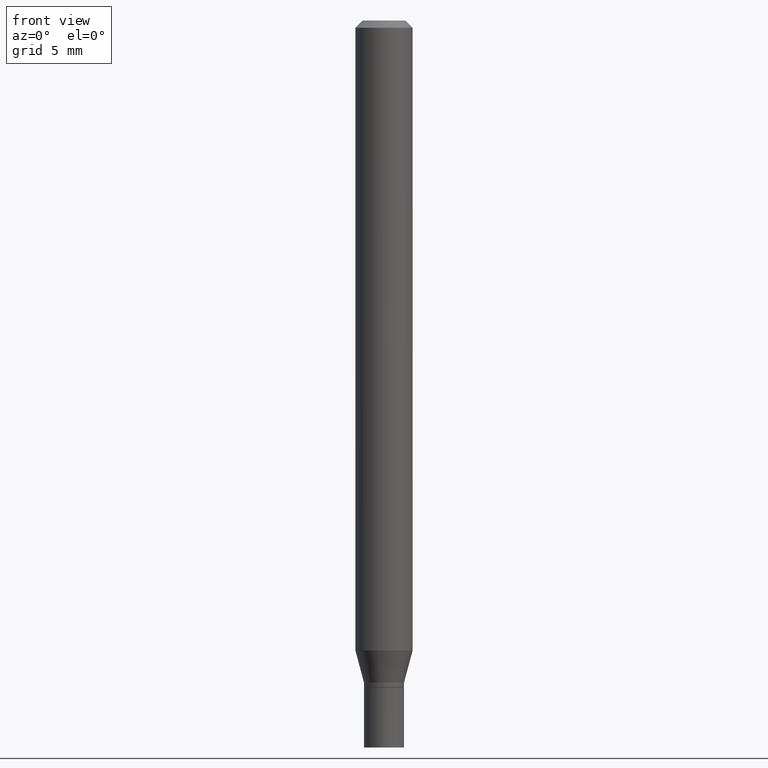
[diagram: clean part render]
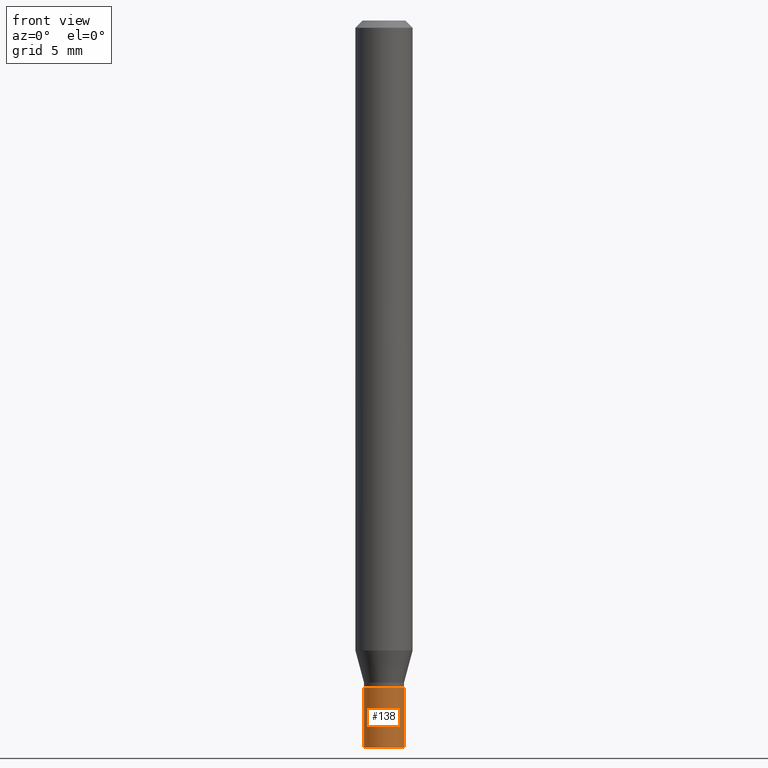
[diagram: same view with one face highlighted and labeled with its STEP entity id]
A machine part, front view. The second image highlights one B-rep face of the part: STEP entity #138.
In plain terms, the highlighted cylindrical surface (edge-blend (fillet) strip) has radius 1.0503 mm, axis along (-0, 0, 1).
Its self-contained STEP definition (entity closure, byte-faithful):
#15 = LINE ( 'NONE', #181, #462 ) ;
#33 = FACE_OUTER_BOUND ( 'NONE', #457, .T. ) ;
#34 = EDGE_CURVE ( 'NONE', #218, #341, #241, .T. ) ;
#35 = ORIENTED_EDGE ( 'NONE', *, *, #34, .T. ) ;
#42 = VECTOR ( 'NONE', #374, 39.37007874015748143 ) ;
#45 = VERTEX_POINT ( 'NONE', #338 ) ;
#52 = DIRECTION ( 'NONE',  ( -2.445468806185136877E-29, 3.491481338843145188E-15, 1.000000000000000000 ) ) ;
#101 = ORIENTED_EDGE ( 'NONE', *, *, #399, .F. ) ;
#118 = AXIS2_PLACEMENT_3D ( 'NONE', #203, #350, #355 ) ;
#124 = CIRCLE ( 'NONE', #451, 0.04134999999999999787 ) ;
#126 = ORIENTED_EDGE ( 'NONE', *, *, #345, .T. ) ;
#138 = ADVANCED_FACE ( 'NONE', ( #33 ), #210, .T. ) ;
#150 = CARTESIAN_POINT ( 'NONE',  ( 0.04134999999999999787, -5.092674680836612159E-15, -1.375900000000000123 ) ) ;
#166 = CARTESIAN_POINT ( 'NONE',  ( 3.668203209277704895E-29, -5.237222008264718177E-15, -1.500000000000000222 ) ) ;
#181 = CARTESIAN_POINT ( 'NONE',  ( -0.04134999999999999787, 2.938094212368014117E-16, -2.033979659820403452E-30 ) ) ;
#191 = ORIENTED_EDGE ( 'NONE', *, *, #315, .F. ) ;
#203 = CARTESIAN_POINT ( 'NONE',  ( 0.000000000000000000, 0.000000000000000000, 0.000000000000000000 ) ) ;
#210 = CYLINDRICAL_SURFACE ( 'NONE', #118, 0.04134999999999999787 ) ;
#218 = VERTEX_POINT ( 'NONE', #388 ) ;
#221 = DIRECTION ( 'NONE',  ( -2.445468806185136597E-29, 3.491481338843145583E-15, 1.000000000000000000 ) ) ;
#241 = CIRCLE ( 'NONE', #300, 0.04134999999999999787 ) ;
#283 = DIRECTION ( 'NONE',  ( 1.000000000000000000, -6.982962677686273021E-15, 0.000000000000000000 ) ) ;
#295 = DIRECTION ( 'NONE',  ( 1.000000000000000000, -6.982962677686273021E-15, 0.000000000000000000 ) ) ;
#300 = AXIS2_PLACEMENT_3D ( 'NONE', #166, #221, #295 ) ;
#315 = EDGE_CURVE ( 'NONE', #45, #356, #124, .T. ) ;
#323 = CARTESIAN_POINT ( 'NONE',  ( 3.364720530430130200E-29, -4.803929174114285214E-15, -1.375900000000000123 ) ) ;
#338 = CARTESIAN_POINT ( 'NONE',  ( -0.04134999999999999787, -4.726766169952701467E-15, -1.375900000000000123 ) ) ;
#341 = VERTEX_POINT ( 'NONE', #466 ) ;
#345 = EDGE_CURVE ( 'NONE', #341, #356, #369, .T. ) ;
#350 = DIRECTION ( 'NONE',  ( -2.445468806185136597E-29, 3.491481338843145583E-15, 1.000000000000000000 ) ) ;
#355 = DIRECTION ( 'NONE',  ( 1.000000000000000000, -6.982962677686267499E-15, 4.876176775795936353E-29 ) ) ;
#356 = VERTEX_POINT ( 'NONE', #150 ) ;
#365 = DIRECTION ( 'NONE',  ( -2.445468806185136597E-29, 3.491481338843145583E-15, 1.000000000000000000 ) ) ;
#369 = LINE ( 'NONE', #413, #42 ) ;
#374 = DIRECTION ( 'NONE',  ( -2.445468806185136877E-29, 3.491481338843145188E-15, 1.000000000000000000 ) ) ;
#388 = CARTESIAN_POINT ( 'NONE',  ( -0.04134999999999999787, -4.726766169952701467E-15, -1.500000000000000222 ) ) ;
#399 = EDGE_CURVE ( 'NONE', #218, #45, #15, .T. ) ;
#413 = CARTESIAN_POINT ( 'NONE',  ( 0.04134999999999999787, -2.887455067223271427E-16, 2.016299096791619635E-30 ) ) ;
#451 = AXIS2_PLACEMENT_3D ( 'NONE', #323, #365, #283 ) ;
#457 = EDGE_LOOP ( 'NONE', ( #101, #35, #126, #191 ) ) ;
#462 = VECTOR ( 'NONE', #52, 39.37007874015748143 ) ;
#466 = CARTESIAN_POINT ( 'NONE',  ( 0.04134999999999999787, -5.525967514987045911E-15, -1.500000000000000222 ) ) ;